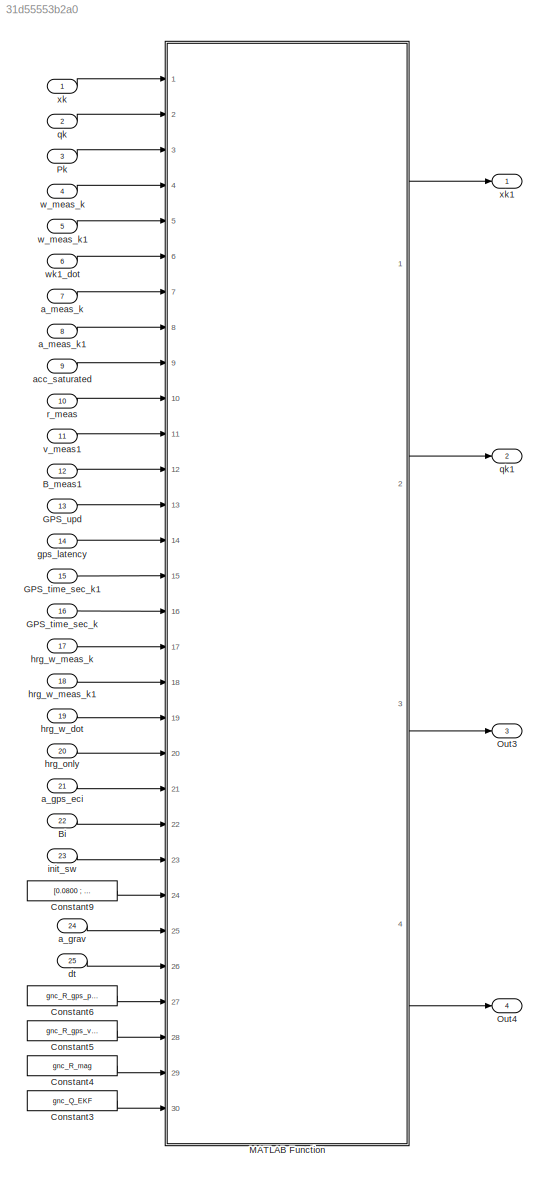
MODEL slx_31d55553b2a0
KIND model
CONFIG AbsTol = auto
CONFIG EnableMultiTasking = off
CONFIG FixedStep = auto
CONFIG MaxStep = auto
CONFIG MinStep = auto
CONFIG RelTol = 1e-3
CONFIG SampleTimeConstraint = Unconstrained
CONFIG Solver = VariableStepAuto
CONFIG SolverName = VariableStepAuto
CONFIG StartTime = 0.0
CONFIG StopTime = 10.0
WORKSPACE source: MAT-file member
WORKSPACE gnc_Q_EKF = [5.72003821599e-08 5.72003821599e-08 5.72003821599e-08 6.11350238322e-12 6.11350238322e-12 6.11350238322e-12 2.33611111111e-05 2.33611111111e-05 2.33611111111e-05 4.70596e-05 4.70596e-05 4.70596e-05 ... (18 elements, 1x18)]
BLOCK [Inport] B_meas1
  IconDisplay = Port number
  Port = 12
  PortDimensions = 3
BLOCK [Inport] Bi
  IconDisplay = Port number
  Port = 22
  PortDimensions = 3
BLOCK [Constant] Constant3
  Value = gnc_Q_EKF
BLOCK [Constant] Constant4
  Value = gnc_R_mag
BLOCK [Constant] Constant5
  Value = gnc_R_gps_vel
BLOCK [Constant] Constant6
  Value = gnc_R_gps_pos
BLOCK [Constant] Constant9
  Value = [0.0800\n;   10.0000\n;    0.0100\n;  100.0000]
BLOCK [Inport] GPS_time_sec_k
  IconDisplay = Port number
  Port = 16
BLOCK [Inport] GPS_time_sec_k1
  IconDisplay = Port number
  Port = 15
BLOCK [Inport] GPS_upd
  IconDisplay = Port number
  Port = 13
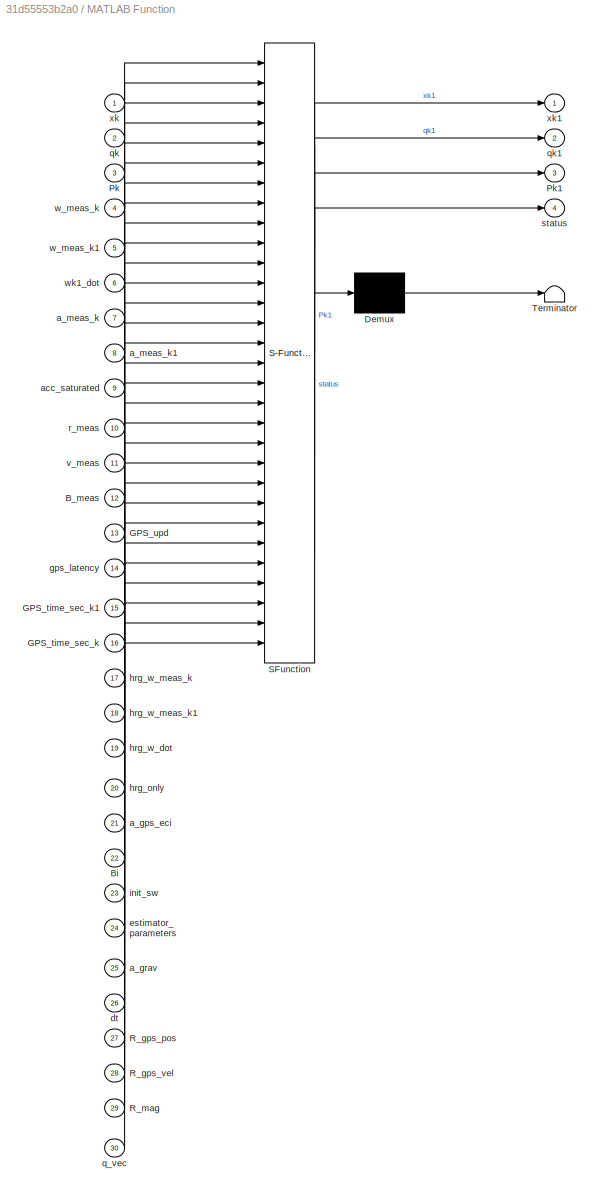
BLOCK [SubSystem] MATLAB Function
  ErrorFcn = Stateflow.Translate.translate
  PermitHierarchicalResolution = ExplicitOnly
  Ports = [30, 4]
  RequestExecContextInheritance = off
  SFBlockType = MATLAB Function
  TreatAsAtomicUnit = on
  Variant = off
BLOCK [Demux] MATLAB Function/ Demux 
  Outputs = 1
  Ports = [1, 1]
BLOCK [S-Function] MATLAB Function/ SFunction 
  EnableBusSupport = on
  FunctionName = sf_sfun
  PortCounts = [30 5]
  Ports = [30, 5]
  SFcnIsStateOwnerBlock = off
  SFunctionDeploymentMode = off
  Tag = Stateflow S-Function ava1 2
BLOCK [Terminator] MATLAB Function/ Terminator 
BLOCK [Inport] MATLAB Function/B_meas
  IconDisplay = Port number
  Port = 12
BLOCK [Inport] MATLAB Function/Bi
  IconDisplay = Port number
  Port = 22
BLOCK [Inport] MATLAB Function/GPS_time_sec_k
  IconDisplay = Port number
  Port = 16
BLOCK [Inport] MATLAB Function/GPS_time_sec_k1
  IconDisplay = Port number
  Port = 15
BLOCK [Inport] MATLAB Function/GPS_upd
  IconDisplay = Port number
  Port = 13
BLOCK [Inport] MATLAB Function/Pk
  IconDisplay = Port number
  Port = 3
BLOCK [Outport] MATLAB Function/Pk1
  IconDisplay = Port number
  Port = 3
BLOCK [Inport] MATLAB Function/R_gps_pos
  IconDisplay = Port number
  Port = 27
BLOCK [Inport] MATLAB Function/R_gps_vel
  IconDisplay = Port number
  Port = 28
BLOCK [Inport] MATLAB Function/R_mag
  IconDisplay = Port number
  Port = 29
BLOCK [Inport] MATLAB Function/a_gps_eci
  IconDisplay = Port number
  Port = 21
BLOCK [Inport] MATLAB Function/a_grav
  IconDisplay = Port number
  Port = 25
BLOCK [Inport] MATLAB Function/a_meas_k
  IconDisplay = Port number
  Port = 7
BLOCK [Inport] MATLAB Function/a_meas_k1
  IconDisplay = Port number
  Port = 8
BLOCK [Inport] MATLAB Function/acc_saturated
  IconDisplay = Port number
  Port = 9
BLOCK [Inport] MATLAB Function/dt
  IconDisplay = Port number
  Port = 26
BLOCK [Inport] MATLAB Function/estimator_parameters
  IconDisplay = Port number
  Port = 24
BLOCK [Inport] MATLAB Function/gps_latency
  IconDisplay = Port number
  Port = 14
BLOCK [Inport] MATLAB Function/hrg_only
  IconDisplay = Port number
  Port = 20
BLOCK [Inport] MATLAB Function/hrg_w_dot
  IconDisplay = Port number
  Port = 19
BLOCK [Inport] MATLAB Function/hrg_w_meas_k
  IconDisplay = Port number
  Port = 17
BLOCK [Inport] MATLAB Function/hrg_w_meas_k1
  IconDisplay = Port number
  Port = 18
BLOCK [Inport] MATLAB Function/init_sw
  IconDisplay = Port number
  Port = 23
BLOCK [Inport] MATLAB Function/q_vec
  IconDisplay = Port number
  Port = 30
BLOCK [Inport] MATLAB Function/qk
  IconDisplay = Port number
  Port = 2
BLOCK [Outport] MATLAB Function/qk1
  IconDisplay = Port number
  Port = 2
BLOCK [Inport] MATLAB Function/r_meas
  IconDisplay = Port number
  Port = 10
BLOCK [Outport] MATLAB Function/status
  IconDisplay = Port number
  Port = 4
BLOCK [Inport] MATLAB Function/v_meas
  IconDisplay = Port number
  Port = 11
BLOCK [Inport] MATLAB Function/w_meas_k
  IconDisplay = Port number
  Port = 4
BLOCK [Inport] MATLAB Function/w_meas_k1
  IconDisplay = Port number
  Port = 5
BLOCK [Inport] MATLAB Function/wk1_dot
  IconDisplay = Port number
  Port = 6
BLOCK [Inport] MATLAB Function/xk
  IconDisplay = Port number
BLOCK [Outport] MATLAB Function/xk1
  IconDisplay = Port number
BLOCK [Outport] Out3
  IconDisplay = Port number
  Port = 3
BLOCK [Outport] Out4
  IconDisplay = Port number
  Port = 4
BLOCK [Inport] Pk
  IconDisplay = Port number
  Port = 3
  PortDimensions = [18, 18]
BLOCK [Inport] a_gps_eci
  IconDisplay = Port number
  Port = 21
  PortDimensions = 3
BLOCK [Inport] a_grav
  IconDisplay = Port number
  Port = 24
  PortDimensions = 3
BLOCK [Inport] a_meas_k
  IconDisplay = Port number
  Port = 7
  PortDimensions = 3
BLOCK [Inport] a_meas_k1
  IconDisplay = Port number
  Port = 8
  PortDimensions = 3
BLOCK [Inport] acc_saturated
  IconDisplay = Port number
  Port = 9
BLOCK [Inport] dt
  IconDisplay = Port number
  Port = 25
BLOCK [Inport] gps_latency
  IconDisplay = Port number
  Port = 14
BLOCK [Inport] hrg_only
  IconDisplay = Port number
  Port = 20
BLOCK [Inport] hrg_w_dot
  IconDisplay = Port number
  Port = 19
  PortDimensions = 3
BLOCK [Inport] hrg_w_meas_k
  IconDisplay = Port number
  Port = 17
  PortDimensions = 3
BLOCK [Inport] hrg_w_meas_k1
  IconDisplay = Port number
  Port = 18
  PortDimensions = 3
BLOCK [Inport] init_sw
  IconDisplay = Port number
  OutDataTypeStr = boolean
  Port = 23
BLOCK [Inport] qk
  IconDisplay = Port number
  Port = 2
  PortDimensions = 4
BLOCK [Outport] qk1
  IconDisplay = Port number
  Port = 2
BLOCK [Inport] r_meas
  IconDisplay = Port number
  Port = 10
  PortDimensions = 3
BLOCK [Inport] v_meas1
  IconDisplay = Port number
  Port = 11
  PortDimensions = 3
BLOCK [Inport] w_meas_k
  IconDisplay = Port number
  Port = 4
  PortDimensions = 3
BLOCK [Inport] w_meas_k1
  IconDisplay = Port number
  Port = 5
  PortDimensions = 3
BLOCK [Inport] wk1_dot
  IconDisplay = Port number
  Port = 6
  PortDimensions = 3
BLOCK [Inport] xk
  IconDisplay = Port number
  PortDimensions = 18
BLOCK [Outport] xk1
  IconDisplay = Port number
LINE B_meas1:1 -> MATLAB Function:12
LINE Bi:1 -> MATLAB Function:22
LINE Constant3:1 -> MATLAB Function:30
LINE Constant4:1 -> MATLAB Function:29
LINE Constant5:1 -> MATLAB Function:28
LINE Constant6:1 -> MATLAB Function:27
LINE Constant9:1 -> MATLAB Function:24
LINE GPS_time_sec_k1:1 -> MATLAB Function:15
LINE GPS_time_sec_k:1 -> MATLAB Function:16
LINE GPS_upd:1 -> MATLAB Function:13
LINE MATLAB Function:1 -> xk1:1
LINE MATLAB Function:2 -> qk1:1
LINE MATLAB Function:3 -> Out3:1
LINE MATLAB Function:4 -> Out4:1
LINE Pk:1 -> MATLAB Function:3
LINE a_gps_eci:1 -> MATLAB Function:21
LINE a_grav:1 -> MATLAB Function:25
LINE a_meas_k1:1 -> MATLAB Function:8
LINE a_meas_k:1 -> MATLAB Function:7
LINE acc_saturated:1 -> MATLAB Function:9
LINE dt:1 -> MATLAB Function:26
LINE gps_latency:1 -> MATLAB Function:14
LINE hrg_only:1 -> MATLAB Function:20
LINE hrg_w_dot:1 -> MATLAB Function:19
LINE hrg_w_meas_k1:1 -> MATLAB Function:18
LINE hrg_w_meas_k:1 -> MATLAB Function:17
LINE init_sw:1 -> MATLAB Function:23
LINE qk:1 -> MATLAB Function:2
LINE r_meas:1 -> MATLAB Function:10
LINE v_meas1:1 -> MATLAB Function:11
LINE w_meas_k1:1 -> MATLAB Function:5
LINE w_meas_k:1 -> MATLAB Function:4
LINE wk1_dot:1 -> MATLAB Function:6
LINE xk:1 -> MATLAB Function:1
CHART MATLAB Function states=1 transitions=1
  STATE_LABEL 'eML_blk_kernel()'
  STATE_LABEL 'SCRIPT:\nfunction [xk1,qk1,Pk1,    status]   = INS_GPS_EKF_swords(xk,qk,Pk,w_meas_k,w_meas_k1,wk1_dot,a_meas_k,a_meas_k1,acc_saturated, r_meas,...\n    v_meas, B_meas,GPS_upd,gps_latency,GPS_time_sec_k1, GPS_time_sec_k, hrg_w_meas_k, hrg_w_meas_k1, hrg_w_dot, hrg_only,a_gps_eci,Bi,init_sw,... \n    estimator_parameters, a_grav, dt, R_gps_pos,R_gps_vel,R_mag, q_vec ) \n\n%%%%\n%#codegen\n\na_bar_inertial=[...<+3608ch>'
